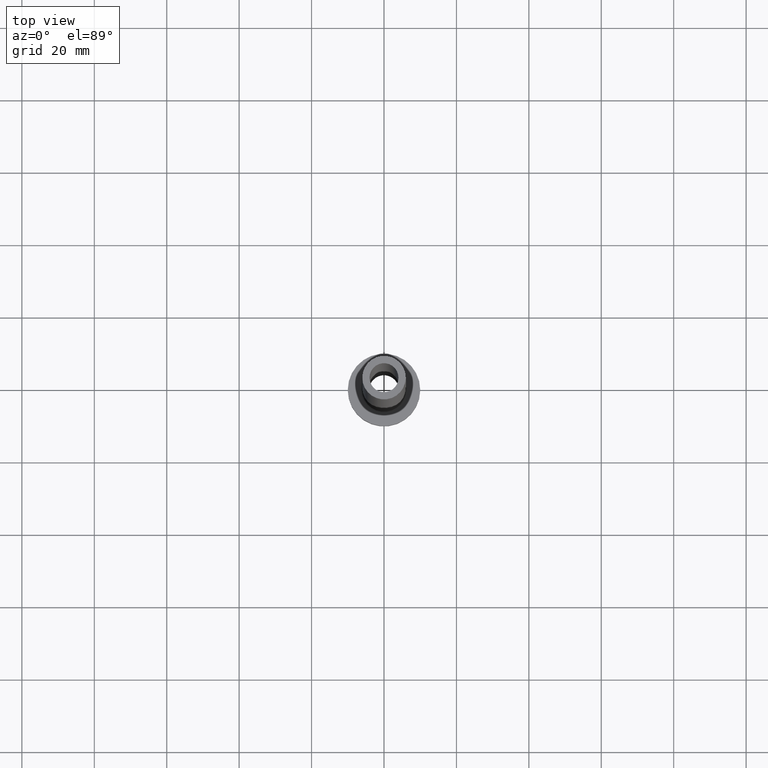
[diagram: clean part render]
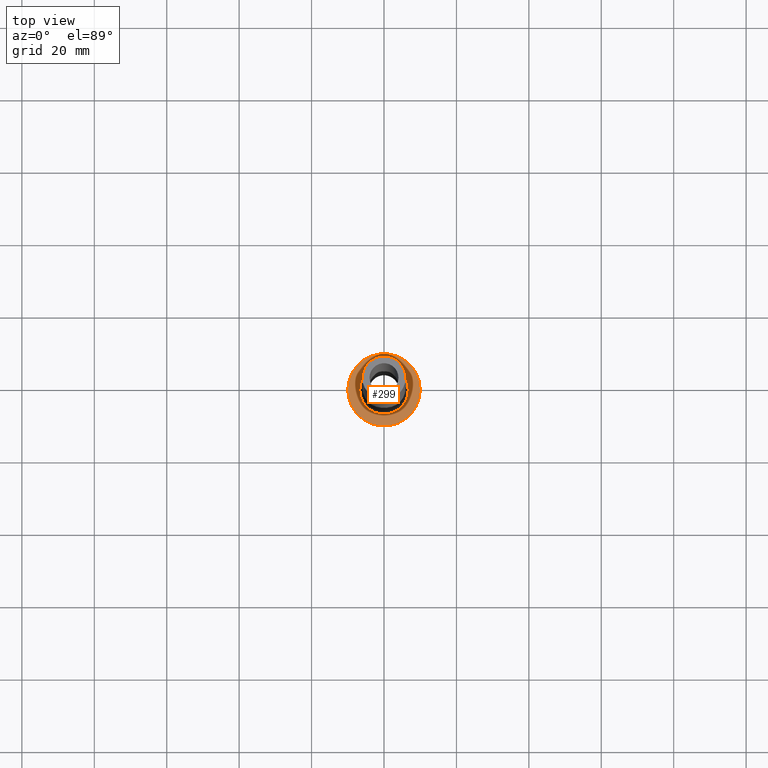
[diagram: same view with one face highlighted and labeled with its STEP entity id]
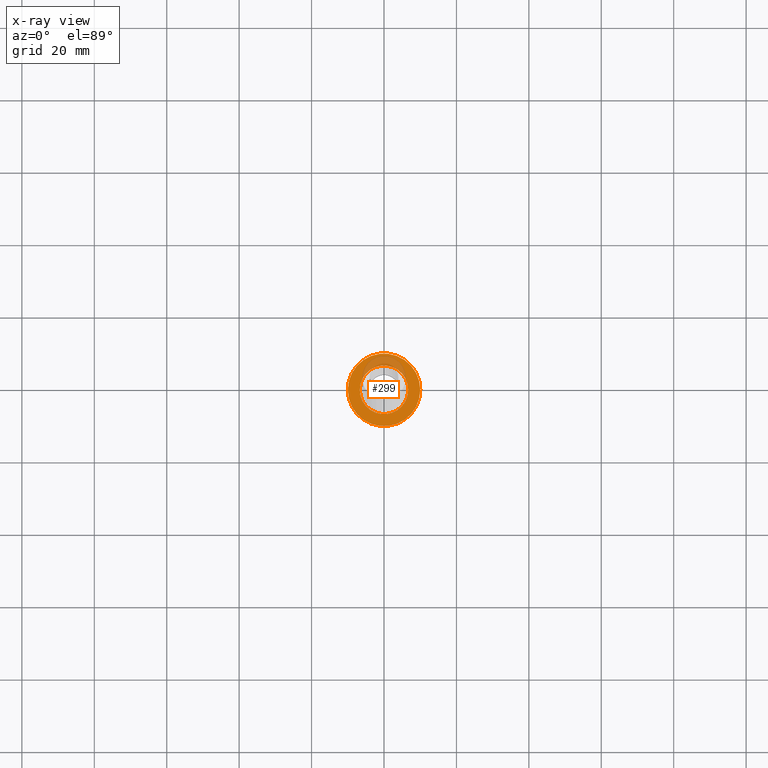
[diagram: x-ray of the same camera — body ghosted, the highlighted face saturated]
A machine part, top view. The second image highlights one B-rep face of the part: STEP entity #299.
The next image is the same camera in x-ray: the body ghosted, the highlighted face saturated — about 17% of this face is hidden behind the body in this view.
In plain terms, the highlighted planar face has unit normal (0, 0, 1).
Its self-contained STEP definition (entity closure, byte-faithful):
#3 = EDGE_CURVE ( 'NONE', #444, #308, #278, .T. ) ;
#9 = ORIENTED_EDGE ( 'NONE', *, *, #3, .T. ) ;
#25 = EDGE_CURVE ( 'NONE', #112, #126, #217, .T. ) ;
#39 = EDGE_LOOP ( 'NONE', ( #93, #9 ) ) ;
#46 = DIRECTION ( 'NONE',  ( -0.000000000000000000, -0.000000000000000000, -1.000000000000000000 ) ) ;
#48 = AXIS2_PLACEMENT_3D ( 'NONE', #77, #46, #354 ) ;
#50 = CARTESIAN_POINT ( 'NONE',  ( 0.000000000000000000, 0.000000000000000000, 7.000000000000000000 ) ) ;
#55 = EDGE_CURVE ( 'NONE', #308, #444, #454, .T. ) ;
#76 = ORIENTED_EDGE ( 'NONE', *, *, #25, .T. ) ;
#77 = CARTESIAN_POINT ( 'NONE',  ( 0.000000000000000000, 0.000000000000000000, 7.000000000000000000 ) ) ;
#78 = FACE_BOUND ( 'NONE', #410, .T. ) ;
#84 = DIRECTION ( 'NONE',  ( 1.000000000000000000, 0.000000000000000000, 0.000000000000000000 ) ) ;
#93 = ORIENTED_EDGE ( 'NONE', *, *, #55, .T. ) ;
#102 = CIRCLE ( 'NONE', #360, 6.700000000000001066 ) ;
#112 = VERTEX_POINT ( 'NONE', #244 ) ;
#126 = VERTEX_POINT ( 'NONE', #461 ) ;
#152 = FACE_OUTER_BOUND ( 'NONE', #39, .T. ) ;
#173 = AXIS2_PLACEMENT_3D ( 'NONE', #176, #254, #84 ) ;
#176 = CARTESIAN_POINT ( 'NONE',  ( 0.000000000000000000, 0.000000000000000000, 7.000000000000000000 ) ) ;
#185 = CARTESIAN_POINT ( 'NONE',  ( 0.000000000000000000, 0.000000000000000000, 7.000000000000000000 ) ) ;
#190 = DIRECTION ( 'NONE',  ( 0.000000000000000000, 0.000000000000000000, 1.000000000000000000 ) ) ;
#198 = PLANE ( 'NONE',  #371 ) ;
#217 = CIRCLE ( 'NONE', #48, 6.700000000000001066 ) ;
#227 = CARTESIAN_POINT ( 'NONE',  ( 0.000000000000000000, 0.000000000000000000, 7.000000000000000000 ) ) ;
#228 = ORIENTED_EDGE ( 'NONE', *, *, #459, .T. ) ;
#244 = CARTESIAN_POINT ( 'NONE',  ( 6.700000000000001066, 0.000000000000000000, 7.000000000000006217 ) ) ;
#254 = DIRECTION ( 'NONE',  ( 0.000000000000000000, 0.000000000000000000, 1.000000000000000000 ) ) ;
#257 = CARTESIAN_POINT ( 'NONE',  ( 10.00000000000000000, 1.224646799147353256E-15, 7.000000000000000000 ) ) ;
#266 = DIRECTION ( 'NONE',  ( 1.000000000000000000, 0.000000000000000000, 0.000000000000000000 ) ) ;
#267 = DIRECTION ( 'NONE',  ( 1.000000000000000000, 0.000000000000000000, 0.000000000000000000 ) ) ;
#278 = CIRCLE ( 'NONE', #173, 10.00000000000000000 ) ;
#299 = ADVANCED_FACE ( 'NONE', ( #78, #152 ), #198, .T. ) ;
#302 = AXIS2_PLACEMENT_3D ( 'NONE', #50, #449, #266 ) ;
#306 = DIRECTION ( 'NONE',  ( -0.000000000000000000, -0.000000000000000000, -1.000000000000000000 ) ) ;
#308 = VERTEX_POINT ( 'NONE', #451 ) ;
#354 = DIRECTION ( 'NONE',  ( 1.000000000000000000, 0.000000000000000000, 0.000000000000000000 ) ) ;
#360 = AXIS2_PLACEMENT_3D ( 'NONE', #185, #306, #267 ) ;
#365 = DIRECTION ( 'NONE',  ( 1.000000000000000000, 0.000000000000000000, -0.000000000000000000 ) ) ;
#371 = AXIS2_PLACEMENT_3D ( 'NONE', #227, #190, #365 ) ;
#410 = EDGE_LOOP ( 'NONE', ( #76, #228 ) ) ;
#444 = VERTEX_POINT ( 'NONE', #257 ) ;
#449 = DIRECTION ( 'NONE',  ( 0.000000000000000000, 0.000000000000000000, 1.000000000000000000 ) ) ;
#451 = CARTESIAN_POINT ( 'NONE',  ( -10.00000000000000000, 0.000000000000000000, 7.000000000000000000 ) ) ;
#454 = CIRCLE ( 'NONE', #302, 10.00000000000000000 ) ;
#459 = EDGE_CURVE ( 'NONE', #126, #112, #102, .T. ) ;
#461 = CARTESIAN_POINT ( 'NONE',  ( -6.700000000000001066, 8.205133554287267548E-16, 7.000000000000006217 ) ) ;